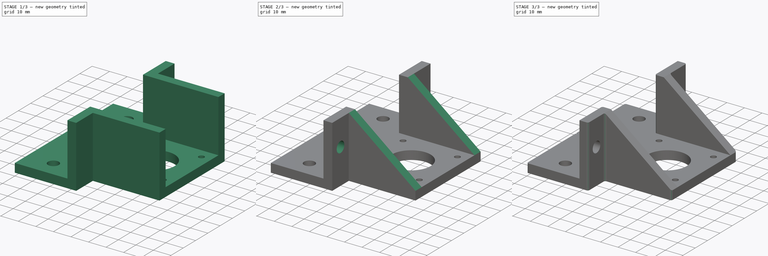
[diagram: build sequence overview — one tinted view per stage of 3, left to right]
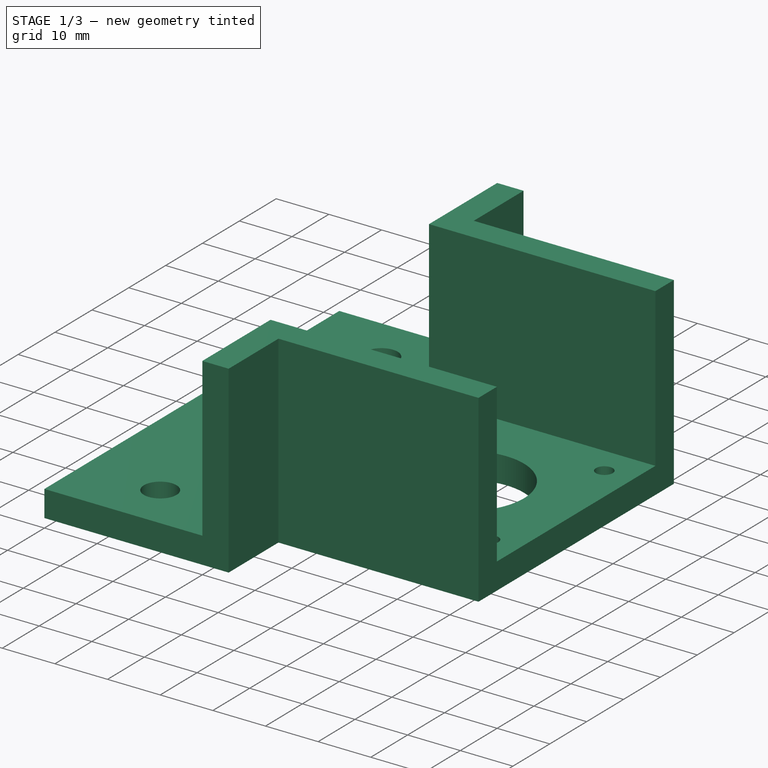
[diagram: stage 1 of 3 — iso view after this stage's code; geometry added in this stage tinted green]
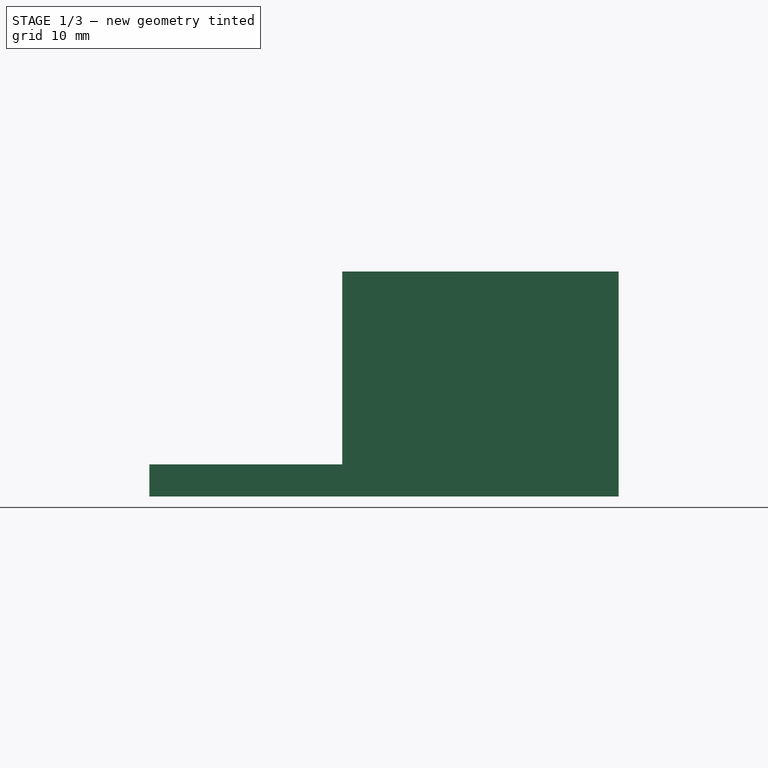
[diagram: stage 1 of 3 — front view after this stage's code; geometry added in this stage tinted green]
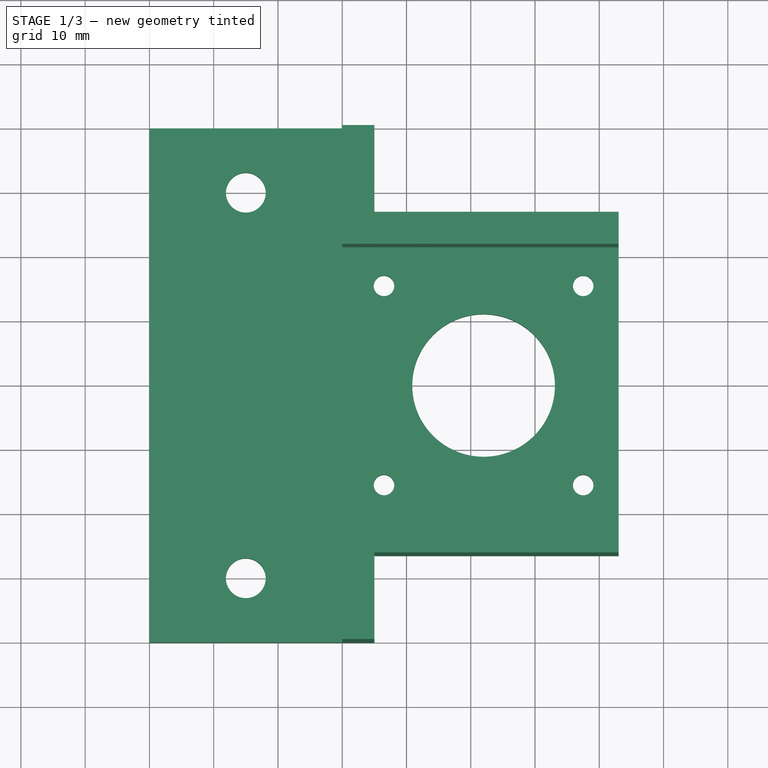
[diagram: stage 1 of 3 — top view after this stage's code; geometry added in this stage tinted green]
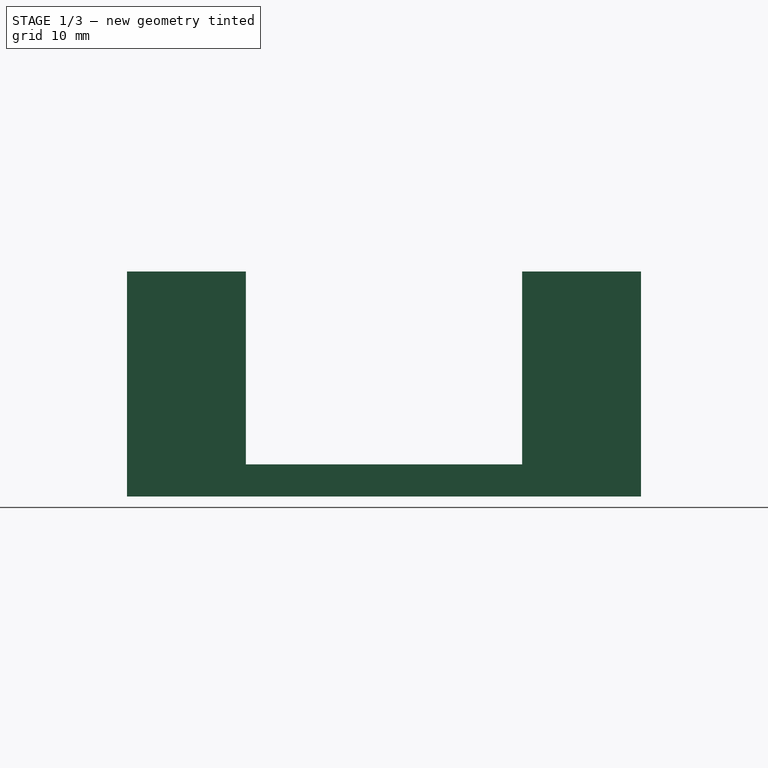
[diagram: stage 1 of 3 — right view after this stage's code; geometry added in this stage tinted green]
FCSTD DOCUMENT  (FreeCAD 0.19R20209 (Git))
Label: Z-Motor_Holder
License: Creative Commons Attribution
LicenseURL: http://creativecommons.org/licenses/by/4.0/
objects: Sketcher::SketchObject×5, PartDesign::Pocket×3, PartDesign::Pad×2, PartDesign::Fillet×1, PartDesign::Body×1
note: 18 computed .brp shape members not serialized (recipe doc carries the construction recipe); baked Part::Feature solids carry a one-line shape summary decoded from their .brp

FEATURE [Sketcher::SketchObject] Sketch
  MapMode = 5
  Support = -> [XY_Plane]
  expr: Constraints[16] = 43 + 10
  sketch-geometry (16):
    g0: LineSegment StartX=-30 StartY=40 StartZ=0 EndX=-30 EndY=-40 EndZ=0
    g1: LineSegment StartX=-30 StartY=-40 StartZ=0 EndX=5 EndY=-40 EndZ=0
    g2: LineSegment StartX=5 StartY=-40 StartZ=0 EndX=5 EndY=-26.5 EndZ=0
    g3: LineSegment StartX=5 StartY=-26.5 StartZ=0 EndX=43 EndY=-26.5 EndZ=0
    g4: LineSegment StartX=43 StartY=-26.5 StartZ=0 EndX=43 EndY=26.5 EndZ=0
    g5: LineSegment StartX=43 StartY=26.5 StartZ=0 EndX=5 EndY=26.5 EndZ=0
    g6: LineSegment StartX=5 StartY=26.5 StartZ=0 EndX=5 EndY=40 EndZ=0
    g7: LineSegment StartX=5 StartY=40 StartZ=0 EndX=-30 EndY=40 EndZ=0
    g8: Circle CenterX=22 CenterY=0 CenterZ=0 NormalX=0 NormalY=0 NormalZ=1 AngleXU=0 Radius=11.1
    g9: Circle CenterX=-15 CenterY=30 CenterZ=0 NormalX=0 NormalY=0 NormalZ=1 AngleXU=0 Radius=3.1
    g10: Circle CenterX=-15 CenterY=-30 CenterZ=0 NormalX=0 NormalY=0 NormalZ=1 AngleXU=0 Radius=3.1
    g11: Circle CenterX=6.5 CenterY=-15.5 CenterZ=0 NormalX=0 NormalY=0 NormalZ=1 AngleXU=0 Radius=1.6
    g12: Circle CenterX=37.5 CenterY=-15.5 CenterZ=0 NormalX=0 NormalY=0 NormalZ=1 AngleXU=0 Radius=1.6
    g13: Circle CenterX=37.5 CenterY=15.5 CenterZ=0 NormalX=0 NormalY=0 NormalZ=1 AngleXU=0 Radius=1.6
    g14: Circle CenterX=6.5 CenterY=15.5 CenterZ=0 NormalX=0 NormalY=0 NormalZ=1 AngleXU=0 Radius=1.6
    g15: GeomPoint X=43 Y=0 Z=0
  constraints (42):
    c: Coincident(g0,g1)
    c: Horizontal(g1)
    c: Coincident(g1,g2)
    c: Vertical(g2)
    c: Coincident(g2,g3)
    c: Horizontal(g3)
    c: Coincident(g3,g4)
    c: Coincident(g4,g5)
    c: Horizontal(g5)
    c: Coincident(g5,g6)
    c: Coincident(g6,g7)
    c: Horizontal(g7)
    c: Vertical(g6)
    c: Coincident(g0,g7)
    c: Symmetric(g0,g0,g-1)
    c: Symmetric(g4,g3,g-1)
    c: DistanceY(g4,g4) = 53
    c: DistanceX(g-1,g4) = 43
    c: DistanceX(g-1,g5) = 5
    c: DistanceX(g0,g-1) = 30
    c: DistanceY(g0,g0) = 80
    c: Equal(g7,g1)
    c: Equal(g14,g11)
    c: Equal(g11,g12)
    c: Equal(g12,g13)
    c: Equal(g9,g10)
    c: Diameter(g9) = 6.2
    c: Symmetric(g9,g10,g-1)
    c: DistanceY(g10,g9) = 60
    c: Symmetric(g3,g4,g15)
    c: Diameter(g8) = 22.2
    c: Horizontal(g13,g14)
    c: Horizontal(g11,g12)
    c: Vertical(g11,g14)
    c: Vertical(g13,g12)
    c: Symmetric(g12,g14,g8)
    c: DistanceX(g14,g13) = 31
    c: Diameter(g12) = 3.2
    c: DistanceX(g9,g-1) = 15
    c: DistanceY(g12,g13) = 31
    c: DistanceX(g-1,g8) = 22
    c: PointOnObject(g8,g-1)
FEATURE [PartDesign::Pad] Pad
  Length = 5
  Length2 = 100
  Profile = -> Sketch
  Refine = true
  Reversed = true
  Type = 0
FEATURE [Sketcher::SketchObject] Sketch001
  ExternalGeometry = -> [Pad]
  MapMode = 5
  Support = -> [XY_Plane]
  sketch-geometry (12):
    g0: LineSegment StartX=0 StartY=-40 StartZ=0 EndX=5 EndY=-40 EndZ=0
    g1: LineSegment StartX=5 StartY=-40 StartZ=0 EndX=5 EndY=-26.5 EndZ=0
    g2: LineSegment StartX=5 StartY=-26.5 StartZ=0 EndX=43 EndY=-26.5 EndZ=0
    g3: LineSegment StartX=43 StartY=-26.5 StartZ=0 EndX=43 EndY=-21.5 EndZ=0
    g4: LineSegment StartX=43 StartY=-21.5 StartZ=0 EndX=0 EndY=-21.5 EndZ=0
    g5: LineSegment StartX=0 StartY=21.5 StartZ=0 EndX=43 EndY=21.5 EndZ=0
    g6: LineSegment StartX=43 StartY=21.5 StartZ=0 EndX=43 EndY=26.5 EndZ=0
    g7: LineSegment StartX=43 StartY=26.5 StartZ=0 EndX=5 EndY=26.5 EndZ=0
    g8: LineSegment StartX=5 StartY=26.5 StartZ=0 EndX=5 EndY=40 EndZ=0
    g9: LineSegment StartX=5 StartY=40 StartZ=0 EndX=0 EndY=40 EndZ=0
    g10: LineSegment StartX=0 StartY=40 StartZ=0 EndX=0 EndY=21.5 EndZ=0
    g11: LineSegment StartX=0 StartY=-21.5 StartZ=0 EndX=0 EndY=-40 EndZ=0
  constraints (31):
    c: Coincident(g0,g1)
    c: Vertical(g1)
    c: Coincident(g1,g2)
    c: Horizontal(g2)
    c: Coincident(g2,g3)
    c: Vertical(g3)
    c: Coincident(g3,g4)
    c: Horizontal(g4)
    c: Horizontal(g5)
    c: Coincident(g5,g6)
    c: Vertical(g6)
    c: Coincident(g6,g7)
    c: Horizontal(g7)
    c: Coincident(g7,g8)
    c: Vertical(g8)
    c: Coincident(g8,g9)
    c: Horizontal(g9)
    c: Horizontal(g0)
    c: DistanceX(g0,g0) = 5
    c: Vertical(g10)
    c: Vertical(g11)
    c: Coincident(g5,g10)
    c: Coincident(g10,g9)
    c: Coincident(g0,g11)
    c: Coincident(g4,g11)
    c: Symmetric(g5,g4,g-1)
    c: Coincident(g8,g-3)
    c: Coincident(g6,g-5)
    c: Coincident(g2,g-6)
    c: Coincident(g0,g-4)
    c: DistanceY(g3,g5) = 43
FEATURE [PartDesign::Pad] Pad001
  BaseFeature = -> Pad
  Length = 30
  Length2 = 100
  Profile = -> Sketch001
  Refine = true
  Type = 0
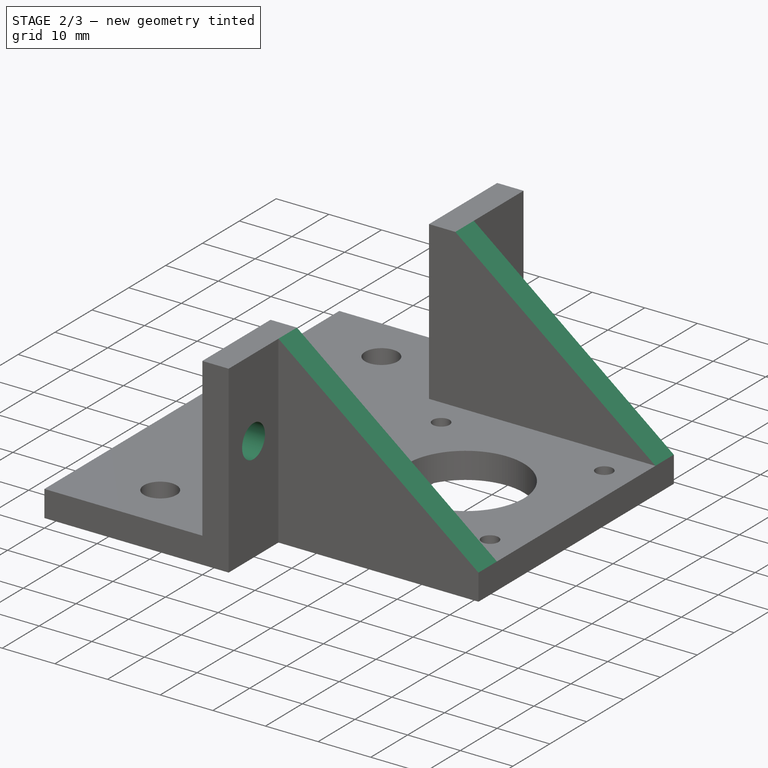
[diagram: stage 2 of 3 — iso view after this stage's code; geometry added in this stage tinted green]
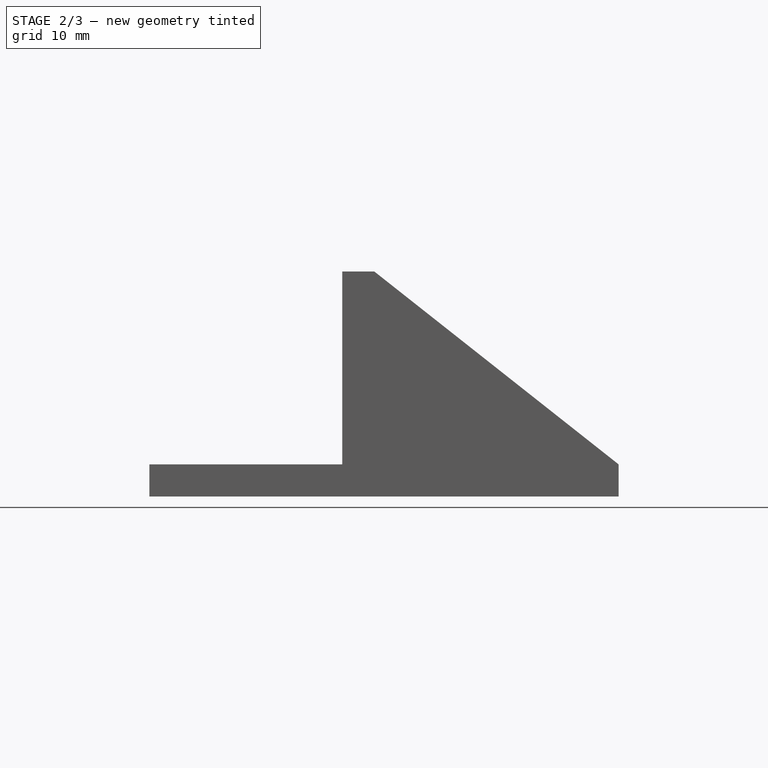
[diagram: stage 2 of 3 — front view after this stage's code; geometry added in this stage tinted green]
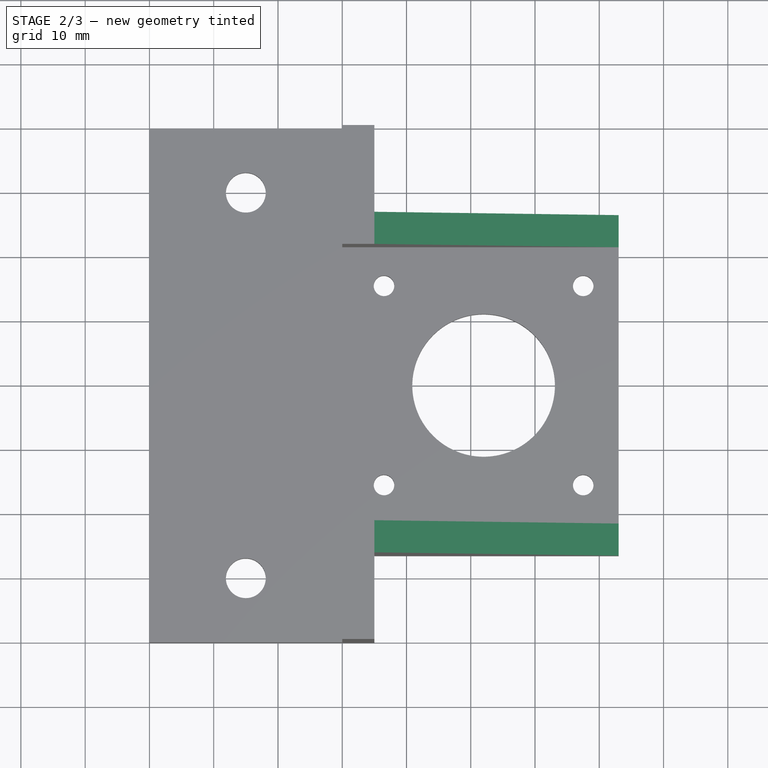
[diagram: stage 2 of 3 — top view after this stage's code; geometry added in this stage tinted green]
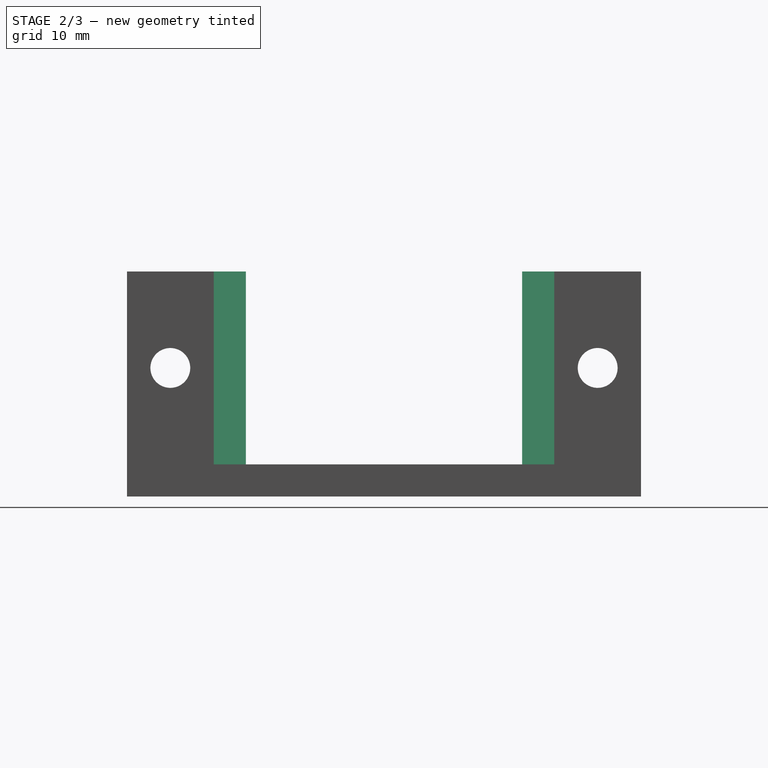
[diagram: stage 2 of 3 — right view after this stage's code; geometry added in this stage tinted green]
FEATURE [Sketcher::SketchObject] Sketch002
  MapMode = 5
  Placement = pos=(0,0,0) rot=(0.57735,0.57735,0.57735;2.0944rad)
  Support = -> [YZ_Plane]
  sketch-geometry (2):
    g0: Circle CenterX=-33.25 CenterY=15 CenterZ=0 NormalX=0 NormalY=0 NormalZ=1 AngleXU=0 Radius=3.1
    g1: Circle CenterX=33.25 CenterY=15 CenterZ=0 NormalX=0 NormalY=0 NormalZ=1 AngleXU=0 Radius=3.1
  constraints (5):
    c: Equal(g1,g0)
    c: Symmetric(g0,g1,g-2)
    c: DistanceX(g0,g1) = 66.5
    c: DistanceY(g-1,g0) = 15
    c: Diameter(g0) = 6.2
FEATURE [PartDesign::Pocket] Pocket
  BaseFeature = -> Pad001
  Length = 5
  Length2 = 100
  Profile = -> Sketch002
  Refine = true
  Reversed = true
  Type = 1
FEATURE [Sketcher::SketchObject] Sketch003
  ExternalGeometry = -> [Pocket]
  MapMode = 5
  Placement = pos=(0,0,0) rot=(1,0,0;1.5708rad)
  Support = -> [XZ_Plane]
  sketch-geometry (3):
    g0: LineSegment StartX=5 StartY=30 StartZ=0 EndX=43 EndY=30 EndZ=0
    g1: LineSegment StartX=43 StartY=30 StartZ=0 EndX=43 EndY=0 EndZ=0
    g2: LineSegment StartX=43 StartY=0 StartZ=0 EndX=5 EndY=30 EndZ=0
  constraints (5):
    c: Coincident(g0,g1)
    c: Vertical(g1)
    c: Coincident(g1,g2)
    c: Coincident(g2,g0)
    c: Horizontal(g1,g-1)
FEATURE [PartDesign::Pocket] Pocket001
  BaseFeature = -> Pocket
  Length = 5
  Length2 = 100
  Midplane = true
  Profile = -> Sketch003
  Refine = true
  Type = 1
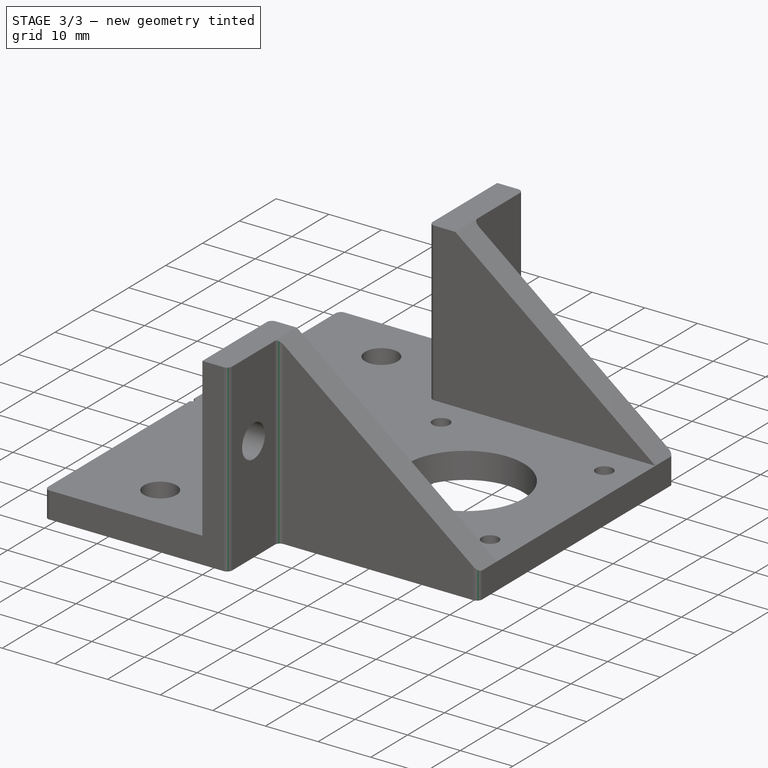
[diagram: stage 3 of 3 — iso view after this stage's code; geometry added in this stage tinted green]
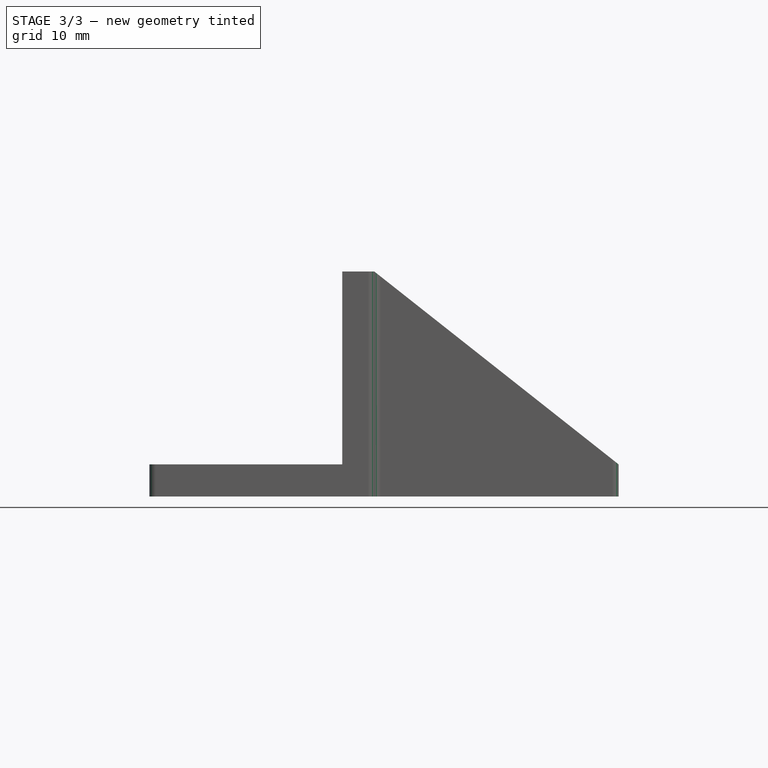
[diagram: stage 3 of 3 — front view after this stage's code; geometry added in this stage tinted green]
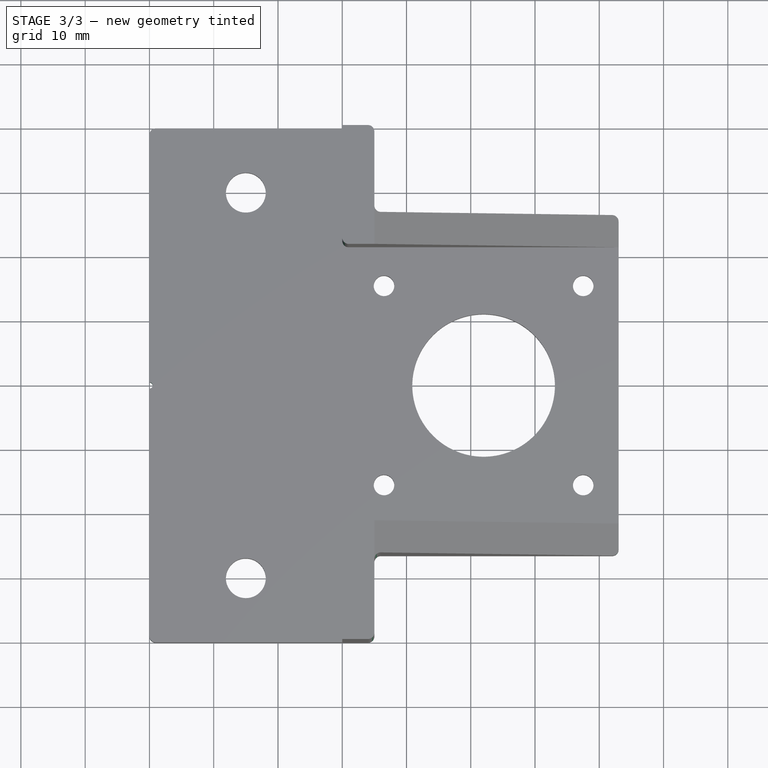
[diagram: stage 3 of 3 — top view after this stage's code; geometry added in this stage tinted green]
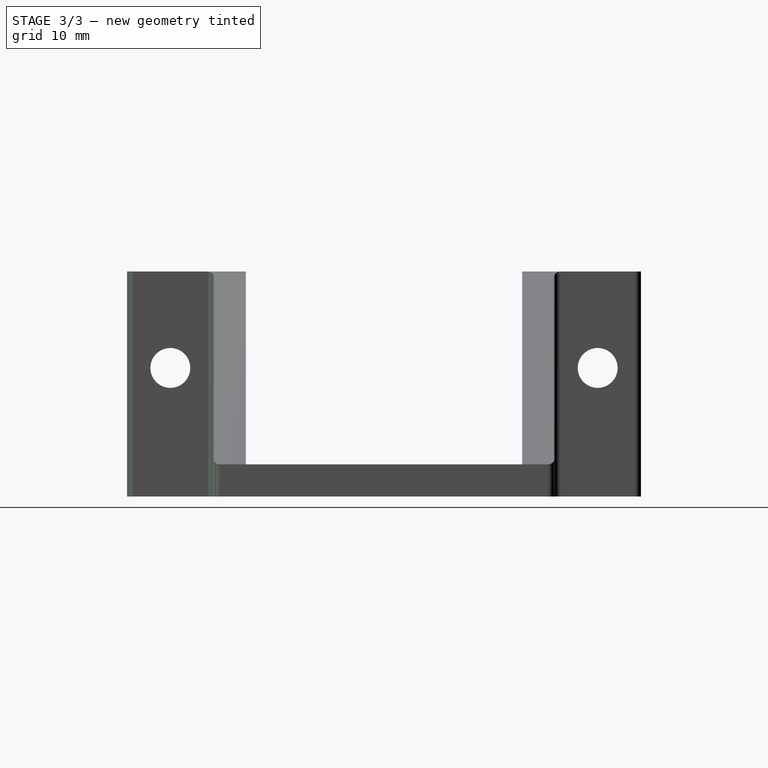
[diagram: stage 3 of 3 — right view after this stage's code; geometry added in this stage tinted green]
FEATURE [PartDesign::Fillet] Fillet
  Base = -> Pocket001 [Edge48,Edge45,Edge59,Edge56,Edge53,Edge40,Edge11,Edge9,Edge1,Edge2]
  BaseFeature = -> Pocket001
  Radius = 1
  Refine = true
  SupportTransform = true
FEATURE [Sketcher::SketchObject] Sketch004
  ExternalGeometry = -> [Fillet]
  MapMode = 5
  Support = -> [Fillet]
  sketch-geometry (1):
    g0: Circle CenterX=-30 CenterY=0 CenterZ=0 NormalX=0 NormalY=0 NormalZ=1 AngleXU=0 Radius=0.5
  constraints (3):
    c: PointOnObject(g0,g-3)
    c: PointOnObject(g0,g-1)
    c: Diameter(g0) = 1
FEATURE [PartDesign::Pocket] Pocket002
  BaseFeature = -> Fillet
  Length = 5
  Length2 = 100
  Midplane = true
  Profile = -> Sketch004
  Refine = true
  Type = 1
FEATURE [PartDesign::Body] Body
  Group = -> [Sketch,Pad,Sketch001,Pad001,Sketch002,Pocket,Sketch003,Pocket001,Fillet,Sketch004,Pocket002]
  Origin = -> Origin
  Tip = -> Pocket002
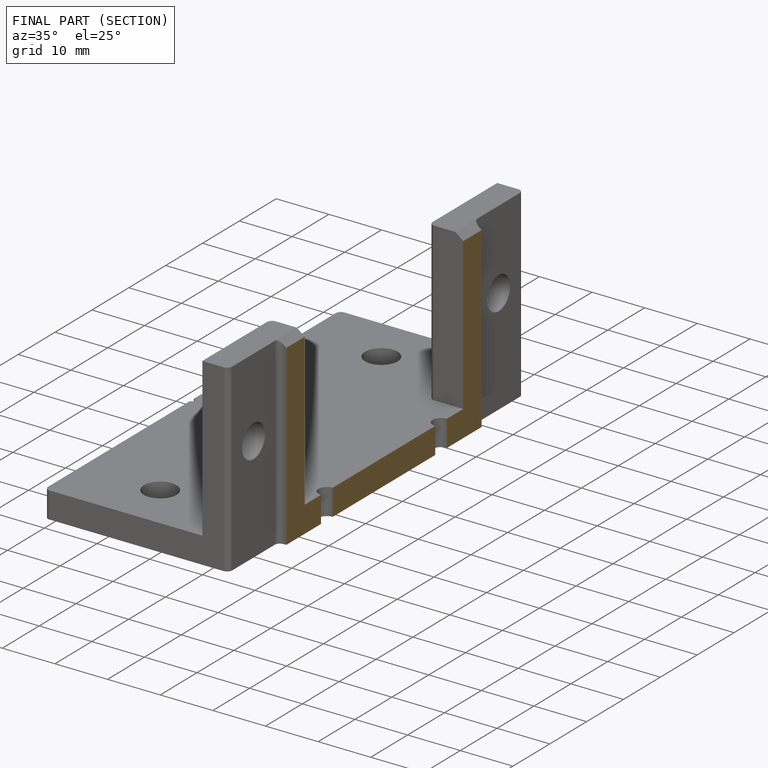
[diagram: finished part — half-section view (interior)]
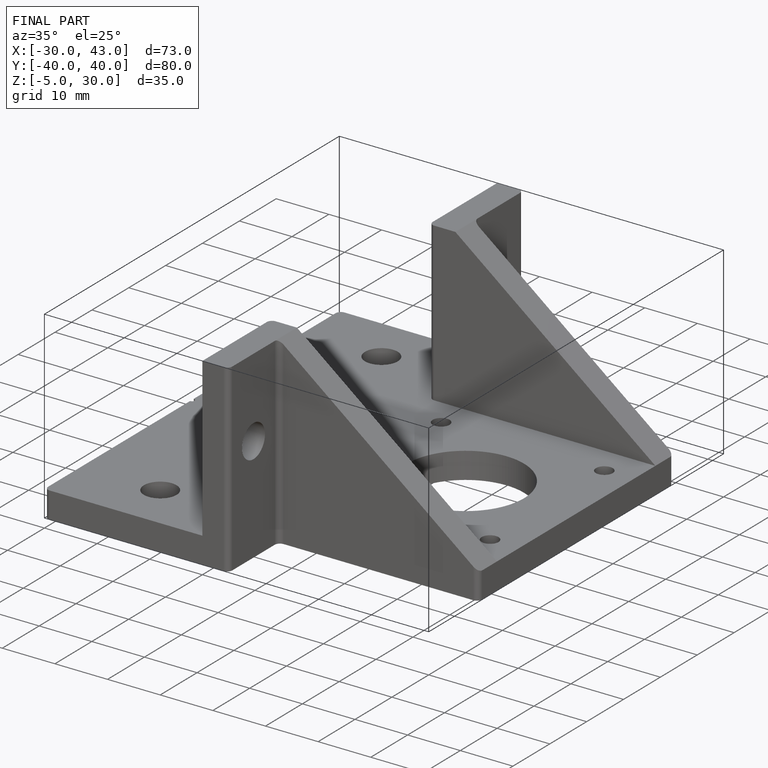
[diagram: finished part — iso view with bounding-box wireframe]
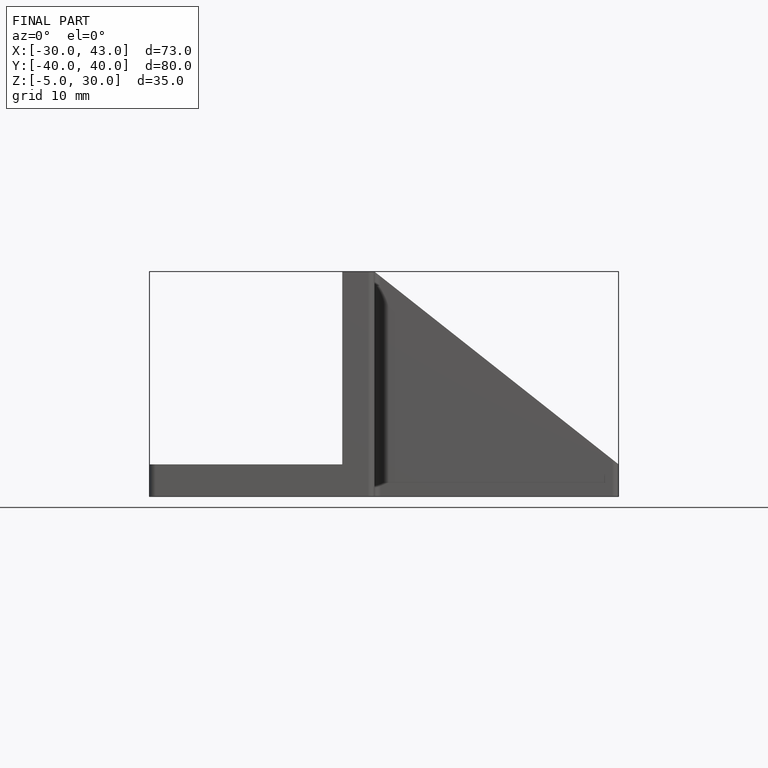
[diagram: finished part — front view with bounding-box wireframe]
